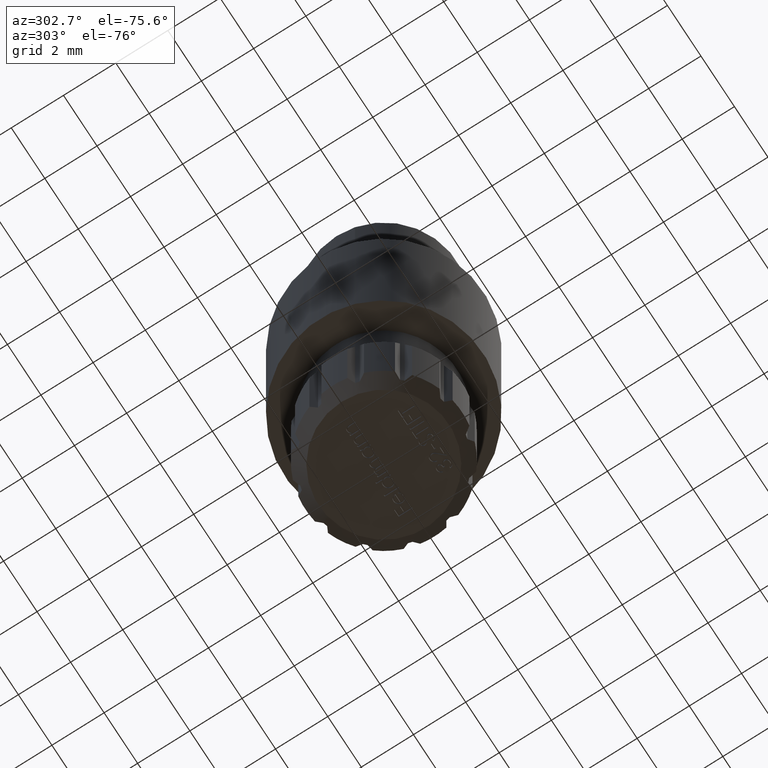
[diagram: clean part render]
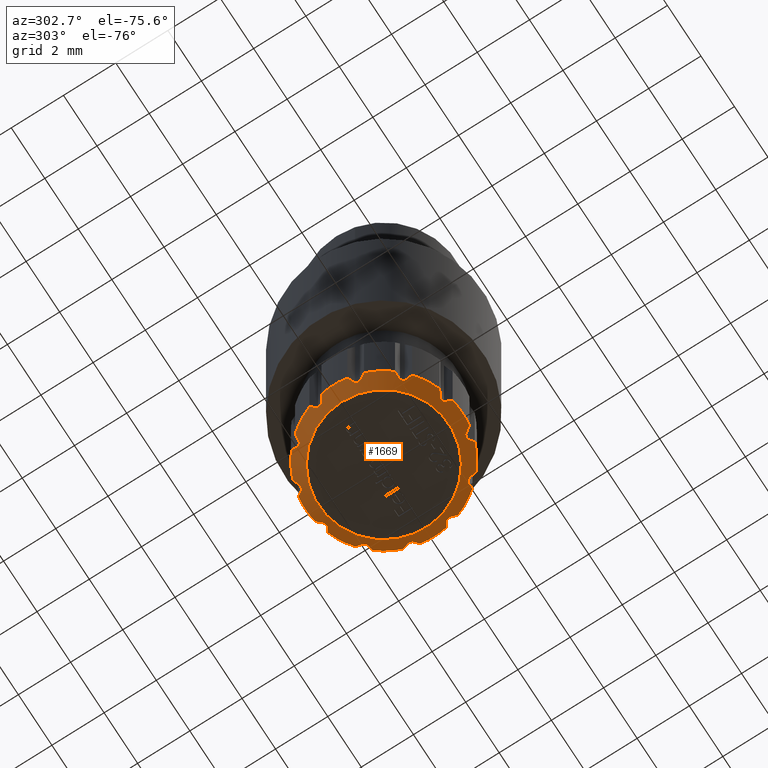
[diagram: same view with one face highlighted and labeled with its STEP entity id]
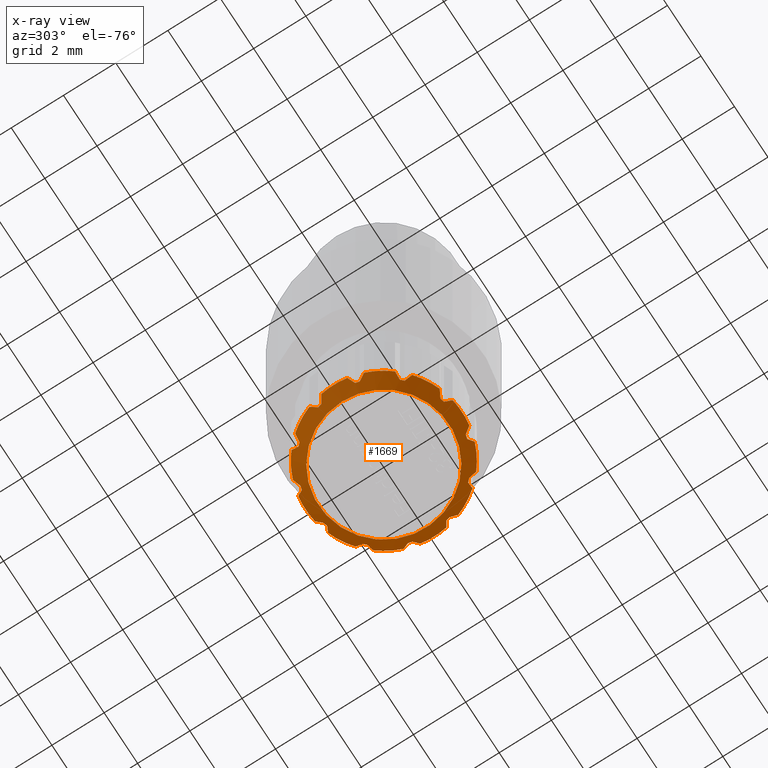
[diagram: x-ray of the same camera — body ghosted, the highlighted face saturated]
A machine part, auxiliary view. The second image highlights one B-rep face of the part: STEP entity #1669.
The next image is the same camera in x-ray: the body ghosted, the highlighted face saturated — about 0% of this face is hidden behind the body in this view.
In plain terms, the highlighted conical surface has half-angle 45 deg.
Its self-contained STEP definition (entity closure, byte-faithful):
#84 = CIRCLE ( 'NONE', #6076, 3.000000000000000000 ) ;
#102 = CARTESIAN_POINT ( 'NONE',  ( 0.4999999999999998890, 2.958039891549808953, 0.4999999999999998890 ) ) ;
#162 = CARTESIAN_POINT ( 'NONE',  ( 2.311737691489904378, 1.912032647667118335, 0.4999999999999998890 ) ) ;
#169 = CARTESIAN_POINT ( 'NONE',  ( -0.5000000000000000000, 2.958039891549808065, 0.4999999999999998890 ) ) ;
#176 = ORIENTED_EDGE ( 'NONE', *, *, #9007, .T. ) ;
#195 = CARTESIAN_POINT ( 'NONE',  ( -2.683627779027448756, 0.7988378706797785167, 0.2999999999999998224 ) ) ;
#208 = CARTESIAN_POINT ( 'NONE',  ( -2.811737691489909707, -1.046007243882658644, 0.4999999999999998890 ) ) ;
#251 = EDGE_CURVE ( 'NONE', #9379, #3245, #2273, .T. ) ;
#281 = DIRECTION ( 'NONE',  ( -1.000000000000000000, 0.000000000000000000, 0.000000000000000000 ) ) ;
#307 = CARTESIAN_POINT ( 'NONE',  ( -0.5994299824594278014, -2.802577053737541402, 0.3651688080806904102 ) ) ;
#314 = ORIENTED_EDGE ( 'NONE', *, *, #9612, .T. ) ;
#380 = CARTESIAN_POINT ( 'NONE',  ( 0.4999999999999998890, 2.958039891549808953, 0.4999999999999998890 ) ) ;
#385 = CARTESIAN_POINT ( 'NONE',  ( -0.8821669342688110982, 2.726817915829781835, 0.3651688080806902992 ) ) ;
#400 = DIRECTION ( 'NONE',  ( 0.000000000000000000, 0.000000000000000000, 1.000000000000000000 ) ) ;
#433 = B_SPLINE_CURVE_WITH_KNOTS ( 'NONE', 3,
 ( #4717, #3728, #1799, #7490 ),
 .UNSPECIFIED., .F., .F.,
 ( 4, 4 ),
 ( 2.742078407098144747E-07, 0.0003430640103736625076 ),
 .UNSPECIFIED. ) ;
#440 = EDGE_CURVE ( 'NONE', #1533, #8383, #3233, .T. ) ;
#476 = CARTESIAN_POINT ( 'NONE',  ( 0.6500000000000000222, -2.723508766279264304, 0.2999999999999998779 ) ) ;
#478 = CARTESIAN_POINT ( 'NONE',  ( 1.912032647667126106, 2.311737691489897273, 0.4999999999999998890 ) ) ;
#506 = DIRECTION ( 'NONE',  ( -0.000000000000000000, -0.000000000000000000, -1.000000000000000000 ) ) ;
#534 = ORIENTED_EDGE ( 'NONE', *, *, #10775, .T. ) ;
#568 = ORIENTED_EDGE ( 'NONE', *, *, #5762, .T. ) ;
#570 = ORIENTED_EDGE ( 'NONE', *, *, #2886, .F. ) ;
#573 = DIRECTION ( 'NONE',  ( -1.000000000000000000, 0.000000000000000000, 0.000000000000000000 ) ) ;
#621 = CARTESIAN_POINT ( 'NONE',  ( -1.924670895599491116, 2.033627779027482596, 0.2999999999999996003 ) ) ;
#653 = VERTEX_POINT ( 'NONE', #195 ) ;
#672 = AXIS2_PLACEMENT_3D ( 'NONE', #1098, #5718, #7698 ) ;
#694 = CARTESIAN_POINT ( 'NONE',  ( -2.958039891549813838, -0.4999999999999698574, 0.4999999999999998890 ) ) ;
#836 = CARTESIAN_POINT ( 'NONE',  ( -1.912032647667093910, 2.311737691489923918, 0.4999999999999998890 ) ) ;
#843 = CARTESIAN_POINT ( 'NONE',  ( 1.916200600912734808, -2.220020143417681613, 0.4319807832766577316 ) ) ;
#847 = ORIENTED_EDGE ( 'NONE', *, *, #4121, .T. ) ;
#895 = FACE_BOUND ( 'NONE', #7110, .T. ) ;
#898 = CARTESIAN_POINT ( 'NONE',  ( 2.311737691489891056, -1.912032647667133878, 0.4999999999999998890 ) ) ;
#917 = VERTEX_POINT ( 'NONE', #162 ) ;
#954 = CARTESIAN_POINT ( 'NONE',  ( -2.311737691489917257, -1.912032647667102125, 0.4999999999999998890 ) ) ;
#958 = CARTESIAN_POINT ( 'NONE',  ( -2.723508766279257198, 0.6500000000000284439, 0.2999999999999996003 ) ) ;
#980 = CARTESIAN_POINT ( 'NONE',  ( 0.000000000000000000, 0.000000000000000000, 0.2999999999999996003 ) ) ;
#1027 = CARTESIAN_POINT ( 'NONE',  ( -0.5994299824594279125, 2.802577053737540957, 0.3651688080806900771 ) ) ;
#1092 = VERTEX_POINT ( 'NONE', #380 ) ;
#1098 = CARTESIAN_POINT ( 'NONE',  ( 0.000000000000000000, 0.000000000000000000, 0.4999999999999998890 ) ) ;
#1119 = DIRECTION ( 'NONE',  ( -0.000000000000000000, -0.000000000000000000, -1.000000000000000000 ) ) ;
#1151 = ORIENTED_EDGE ( 'NONE', *, *, #4672, .F. ) ;
#1175 = DIRECTION ( 'NONE',  ( -1.000000000000000000, 0.000000000000000000, 0.000000000000000000 ) ) ;
#1177 = CIRCLE ( 'NONE', #2845, 2.799999999999999822 ) ;
#1200 = DIRECTION ( 'NONE',  ( -1.000000000000000000, 0.000000000000000000, 0.000000000000000000 ) ) ;
#1216 = CARTESIAN_POINT ( 'NONE',  ( 2.958039891549809841, 0.4999999999999893974, 0.4999999999999998890 ) ) ;
#1254 = CARTESIAN_POINT ( 'NONE',  ( -2.958039891549813838, -0.4999999999999698574, 0.4999999999999998890 ) ) ;
#1257 = EDGE_CURVE ( 'NONE', #3510, #3758, #433, .T. ) ;
#1329 = CARTESIAN_POINT ( 'NONE',  ( -0.6499999999999999112, 2.723508766279263860, 0.2999999999999996003 ) ) ;
#1334 = ORIENTED_EDGE ( 'NONE', *, *, #8988, .T. ) ;
#1341 = CARTESIAN_POINT ( 'NONE',  ( -2.683627779027465632, -0.7988378706797221174, 0.2999999999999996003 ) ) ;
#1356 = VERTEX_POINT ( 'NONE', #5866 ) ;
#1363 = CARTESIAN_POINT ( 'NONE',  ( 0.000000000000000000, 0.000000000000000000, 0.4999999999999998890 ) ) ;
#1390 = ORIENTED_EDGE ( 'NONE', *, *, #4383, .T. ) ;
#1396 = CIRCLE ( 'NONE', #1504, 3.000000000000000000 ) ;
#1433 = CARTESIAN_POINT ( 'NONE',  ( -2.683627779027448756, 0.7988378706797785167, 0.2999999999999998224 ) ) ;
#1459 = DIRECTION ( 'NONE',  ( -1.000000000000000000, 0.000000000000000000, 0.000000000000000000 ) ) ;
#1504 = AXIS2_PLACEMENT_3D ( 'NONE', #4694, #9381, #11457 ) ;
#1523 = CARTESIAN_POINT ( 'NONE',  ( -2.802577053737534740, 0.5994299824594572224, 0.3651688080806904102 ) ) ;
#1533 = VERTEX_POINT ( 'NONE', #6062 ) ;
#1560 = CARTESIAN_POINT ( 'NONE',  ( 1.912032647667110119, -2.311737691489910596, 0.4999999999999998890 ) ) ;
#1605 = CARTESIAN_POINT ( 'NONE',  ( -0.5494683274286109587, -2.880694141569248856, 0.4319807832766581202 ) ) ;
#1612 = VERTEX_POINT ( 'NONE', #3238 ) ;
#1619 = CIRCLE ( 'NONE', #11729, 3.000000000000000000 ) ;
#1634 = CARTESIAN_POINT ( 'NONE',  ( 0.7988378706797500950, 2.683627779027457194, 0.2999999999999997669 ) ) ;
#1640 = B_SPLINE_CURVE_WITH_KNOTS ( 'NONE', 3,
 ( #5899, #9731, #9632, #10616 ),
 .UNSPECIFIED., .F., .F.,
 ( 4, 4 ),
 ( 2.954317623281936935E-07, 0.0003430852342952688135 ),
 .UNSPECIFIED. ) ;
#1641 = EDGE_CURVE ( 'NONE', #5516, #1356, #7230, .T. ) ;
#1649 = ORIENTED_EDGE ( 'NONE', *, *, #10435, .T. ) ;
#1656 = EDGE_CURVE ( 'NONE', #3204, #3399, #8308, .T. ) ;
#1669 = ADVANCED_FACE ( 'NONE', ( #4568, #895 ), #12333, .T. ) ;
#1674 = AXIS2_PLACEMENT_3D ( 'NONE', #5221, #10049, #6172 ) ;
#1689 = CARTESIAN_POINT ( 'NONE',  ( -1.916200600912719043, 2.220020143417694936, 0.4319807832766572875 ) ) ;
#1783 = AXIS2_PLACEMENT_3D ( 'NONE', #980, #10387, #7575 ) ;
#1791 = VERTEX_POINT ( 'NONE', #3794 ) ;
#1799 = CARTESIAN_POINT ( 'NONE',  ( 2.769488470846277028, -0.9644935406565140479, 0.4319807832766579536 ) ) ;
#1806 = DIRECTION ( 'NONE',  ( 0.000000000000000000, 0.000000000000000000, 1.000000000000000000 ) ) ;
#1830 = EDGE_CURVE ( 'NONE', #9379, #3399, #1177, .T. ) ;
#1855 = ORIENTED_EDGE ( 'NONE', *, *, #9568, .T. ) ;
#1905 = B_SPLINE_CURVE_WITH_KNOTS ( 'NONE', 3,
 ( #11945, #9975, #2492, #8187 ),
 .UNSPECIFIED., .F., .F.,
 ( 4, 4 ),
 ( 2.742078407102277738E-07, 0.0003430640103736633749 ),
 .UNSPECIFIED. ) ;
#1910 = CARTESIAN_POINT ( 'NONE',  ( -0.7988378706797126805, 2.683627779027468296, 0.2999999999999998224 ) ) ;
#1929 = CARTESIAN_POINT ( 'NONE',  ( 0.000000000000000000, 0.000000000000000000, 0.2999999999999996003 ) ) ;
#1957 = DIRECTION ( 'NONE',  ( -1.000000000000000000, 0.000000000000000000, 0.000000000000000000 ) ) ;
#1986 = ORIENTED_EDGE ( 'NONE', *, *, #7661, .T. ) ;
#2005 = VERTEX_POINT ( 'NONE', #11991 ) ;
#2049 = CARTESIAN_POINT ( 'NONE',  ( 1.920410119468698218, 2.127387933370340267, 0.3651688080806899661 ) ) ;
#2176 = VERTEX_POINT ( 'NONE', #11278 ) ;
#2189 = AXIS2_PLACEMENT_3D ( 'NONE', #4869, #9567, #3884 ) ;
#2273 = B_SPLINE_CURVE_WITH_KNOTS ( 'NONE', 3,
 ( #5633, #3741, #2809, #10390 ),
 .UNSPECIFIED., .F., .F.,
 ( 4, 4 ),
 ( 2.437016887059421139E-07, 0.0003430335042216856923 ),
 .UNSPECIFIED. ) ;
#2288 = CARTESIAN_POINT ( 'NONE',  ( 2.311737691489904378, 1.912032647667118335, 0.4999999999999998890 ) ) ;
#2385 = CARTESIAN_POINT ( 'NONE',  ( -2.726817915829760075, 0.8821669342688776005, 0.3651688080806905212 ) ) ;
#2439 = CARTESIAN_POINT ( 'NONE',  ( -1.912032647667142315, -2.311737691489883950, 0.4999999999999998890 ) ) ;
#2492 = CARTESIAN_POINT ( 'NONE',  ( -0.9644935406565242619, -2.769488470846273476, 0.4319807832766577871 ) ) ;
#2505 = CARTESIAN_POINT ( 'NONE',  ( 2.811737691489902158, 1.046007243882678406, 0.4999999999999998890 ) ) ;
#2517 = CARTESIAN_POINT ( 'NONE',  ( -2.723508766279271409, -0.6499999999999714895, 0.2999999999999998779 ) ) ;
#2529 = AXIS2_PLACEMENT_3D ( 'NONE', #9352, #9398, #6513 ) ;
#2594 = CIRCLE ( 'NONE', #1674, 2.799999999999999822 ) ;
#2602 = VERTEX_POINT ( 'NONE', #1216 ) ;
#2642 = CARTESIAN_POINT ( 'NONE',  ( -2.723508766279271409, -0.6499999999999714895, 0.2999999999999998779 ) ) ;
#2660 = CARTESIAN_POINT ( 'NONE',  ( 2.723508766279261639, -0.6500000000000093481, 0.2999999999999996003 ) ) ;
#2663 = EDGE_CURVE ( 'NONE', #6788, #3204, #1619, .T. ) ;
#2664 = AXIS2_PLACEMENT_3D ( 'NONE', #8163, #5385, #8334 ) ;
#2669 = CARTESIAN_POINT ( 'NONE',  ( 2.127387933370333606, -1.920410119468705767, 0.3651688080806905767 ) ) ;
#2692 = EDGE_CURVE ( 'NONE', #2005, #917, #4807, .T. ) ;
#2717 = AXIS2_PLACEMENT_3D ( 'NONE', #4044, #4087, #281 ) ;
#2738 = ORIENTED_EDGE ( 'NONE', *, *, #12169, .T. ) ;
#2746 = CARTESIAN_POINT ( 'NONE',  ( 1.912032647667110119, -2.311737691489910596, 0.4999999999999998890 ) ) ;
#2751 = CARTESIAN_POINT ( 'NONE',  ( -1.912032647667093910, 2.311737691489923918, 0.4999999999999998890 ) ) ;
#2757 = CIRCLE ( 'NONE', #672, 3.000000000000000000 ) ;
#2809 = CARTESIAN_POINT ( 'NONE',  ( -2.220020143417687830, -1.916200600912727259, 0.4319807832766577316 ) ) ;
#2820 = DIRECTION ( 'NONE',  ( 0.000000000000000000, 0.000000000000000000, 1.000000000000000000 ) ) ;
#2845 = AXIS2_PLACEMENT_3D ( 'NONE', #2898, #2820, #4774 ) ;
#2855 = B_SPLINE_CURVE_WITH_KNOTS ( 'NONE', 3,
 ( #3526, #4497, #7361, #9269 ),
 .UNSPECIFIED., .F., .F.,
 ( 4, 4 ),
 ( 2.803256453692197039E-07, 0.0003430701281783232683 ),
 .UNSPECIFIED. ) ;
#2864 = VERTEX_POINT ( 'NONE', #2751 ) ;
#2869 = CIRCLE ( 'NONE', #4599, 3.000000000000000000 ) ;
#2886 = EDGE_CURVE ( 'NONE', #10343, #9799, #7050, .T. ) ;
#2892 = CARTESIAN_POINT ( 'NONE',  ( 2.958039891549809841, 0.4999999999999893974, 0.4999999999999998890 ) ) ;
#2895 = CIRCLE ( 'NONE', #2189, 2.799999999999999822 ) ;
#2898 = CARTESIAN_POINT ( 'NONE',  ( 0.000000000000000000, 0.000000000000000000, 0.2999999999999996003 ) ) ;
#2909 = DIRECTION ( 'NONE',  ( -1.000000000000000000, 0.000000000000000000, 0.000000000000000000 ) ) ;
#2923 = ORIENTED_EDGE ( 'NONE', *, *, #7743, .T. ) ;
#2946 = CIRCLE ( 'NONE', #4575, 2.799999999999999822 ) ;
#3017 = EDGE_CURVE ( 'NONE', #653, #6980, #2946, .T. ) ;
#3045 = CARTESIAN_POINT ( 'NONE',  ( 0.000000000000000000, 0.000000000000000000, 0.4999999999999998890 ) ) ;
#3061 = VERTEX_POINT ( 'NONE', #3906 ) ;
#3073 = CARTESIAN_POINT ( 'NONE',  ( 1.046007243882687288, 2.811737691489899049, 0.4999999999999998890 ) ) ;
#3102 = CARTESIAN_POINT ( 'NONE',  ( 0.9644935406564856262, -2.769488470846286798, 0.4319807832766576206 ) ) ;
#3143 = DIRECTION ( 'NONE',  ( -1.000000000000000000, 0.000000000000000000, 0.000000000000000000 ) ) ;
#3204 = VERTEX_POINT ( 'NONE', #12015 ) ;
#3233 = B_SPLINE_CURVE_WITH_KNOTS ( 'NONE', 3,
 ( #898, #8329, #2669, #3612 ),
 .UNSPECIFIED., .F., .F.,
 ( 4, 4 ),
 ( 2.491383796164675240E-07, 0.0003430389409125971759 ),
 .UNSPECIFIED. ) ;
#3238 = CARTESIAN_POINT ( 'NONE',  ( 0.5000000000000000000, -2.958039891549808065, 0.4999999999999998890 ) ) ;
#3245 = VERTEX_POINT ( 'NONE', #954 ) ;
#3259 = B_SPLINE_CURVE_WITH_KNOTS ( 'NONE', 3,
 ( #2642, #3584, #12054, #694 ),
 .UNSPECIFIED., .F., .F.,
 ( 4, 4 ),
 ( 2.889840042084965281E-07, 0.0003430787865371480450 ),
 .UNSPECIFIED. ) ;
#3264 = CARTESIAN_POINT ( 'NONE',  ( -2.769488470846269923, 0.9644935406565338099, 0.4319807832766576761 ) ) ;
#3271 = DIRECTION ( 'NONE',  ( -0.000000000000000000, -0.000000000000000000, -1.000000000000000000 ) ) ;
#3297 = CARTESIAN_POINT ( 'NONE',  ( -1.046007243882648874, 2.811737691489913260, 0.4999999999999998890 ) ) ;
#3305 = VERTEX_POINT ( 'NONE', #8425 ) ;
#3329 = EDGE_CURVE ( 'NONE', #3851, #3370, #9579, .T. ) ;
#3370 = VERTEX_POINT ( 'NONE', #5684 ) ;
#3393 = ORIENTED_EDGE ( 'NONE', *, *, #1257, .T. ) ;
#3399 = VERTEX_POINT ( 'NONE', #7586 ) ;
#3452 = ORIENTED_EDGE ( 'NONE', *, *, #9783, .F. ) ;
#3468 = B_SPLINE_CURVE_WITH_KNOTS ( 'NONE', 3,
 ( #4524, #4803, #8506, #2892 ),
 .UNSPECIFIED., .F., .F.,
 ( 4, 4 ),
 ( 2.889840042084648702E-07, 0.0003430787865371480992 ),
 .UNSPECIFIED. ) ;
#3503 = CARTESIAN_POINT ( 'NONE',  ( 2.811737691489895052, -1.046007243882697058, 0.4999999999999998890 ) ) ;
#3510 = VERTEX_POINT ( 'NONE', #7918 ) ;
#3526 = CARTESIAN_POINT ( 'NONE',  ( 2.811737691489902158, 1.046007243882678406, 0.4999999999999998890 ) ) ;
#3575 = CARTESIAN_POINT ( 'NONE',  ( 0.8821669342688489568, 2.726817915829768957, 0.3651688080806900771 ) ) ;
#3579 = CARTESIAN_POINT ( 'NONE',  ( 0.7988378706797313322, -2.683627779027462523, 0.2999999999999996003 ) ) ;
#3584 = CARTESIAN_POINT ( 'NONE',  ( -2.802577053737547619, -0.5994299824593982695, 0.3651688080806903547 ) ) ;
#3594 = ORIENTED_EDGE ( 'NONE', *, *, #6628, .T. ) ;
#3612 = CARTESIAN_POINT ( 'NONE',  ( 2.033627779027448845, -1.924670895599526865, 0.2999999999999996003 ) ) ;
#3728 = CARTESIAN_POINT ( 'NONE',  ( 2.726817915829766736, -0.8821669342688581716, 0.3651688080806906878 ) ) ;
#3729 = CARTESIAN_POINT ( 'NONE',  ( 1.924670895599519538, 2.033627779027455507, 0.2999999999999996003 ) ) ;
#3741 = CARTESIAN_POINT ( 'NONE',  ( -2.127387933370360251, -1.920410119468675791, 0.3651688080806906878 ) ) ;
#3758 = VERTEX_POINT ( 'NONE', #3503 ) ;
#3775 = VERTEX_POINT ( 'NONE', #3579 ) ;
#3794 = CARTESIAN_POINT ( 'NONE',  ( 0.6499999999999999112, 2.723508766279263860, 0.2999999999999996003 ) ) ;
#3799 = CARTESIAN_POINT ( 'NONE',  ( 0.000000000000000000, 0.000000000000000000, 0.4999999999999998890 ) ) ;
#3802 = CIRCLE ( 'NONE', #7821, 2.799999999999999822 ) ;
#3823 = EDGE_CURVE ( 'NONE', #2005, #11933, #3802, .T. ) ;
#3851 = VERTEX_POINT ( 'NONE', #1329 ) ;
#3884 = DIRECTION ( 'NONE',  ( 1.000000000000000000, 0.000000000000000000, 0.000000000000000000 ) ) ;
#3906 = CARTESIAN_POINT ( 'NONE',  ( -2.958039891549802736, 0.5000000000000307532, 0.4999999999999998890 ) ) ;
#3944 = ORIENTED_EDGE ( 'NONE', *, *, #8431, .F. ) ;
#3951 = DIRECTION ( 'NONE',  ( -0.000000000000000000, -0.000000000000000000, -1.000000000000000000 ) ) ;
#3965 = VERTEX_POINT ( 'NONE', #1254 ) ;
#3973 = CARTESIAN_POINT ( 'NONE',  ( -2.683627779027465632, -0.7988378706797221174, 0.2999999999999996003 ) ) ;
#3976 = EDGE_CURVE ( 'NONE', #3758, #1533, #84, .T. ) ;
#3988 = CARTESIAN_POINT ( 'NONE',  ( 0.5494683274286109587, 2.880694141569248856, 0.4319807832766581202 ) ) ;
#4044 = CARTESIAN_POINT ( 'NONE',  ( 0.000000000000000000, 0.000000000000000000, -1.169278378903498267E-16 ) ) ;
#4067 = CARTESIAN_POINT ( 'NONE',  ( 0.000000000000000000, 0.000000000000000000, 0.2999999999999996003 ) ) ;
#4082 = EDGE_CURVE ( 'NONE', #2176, #6788, #1905, .T. ) ;
#4087 = DIRECTION ( 'NONE',  ( -0.000000000000000000, -0.000000000000000000, -1.000000000000000000 ) ) ;
#4112 = CARTESIAN_POINT ( 'NONE',  ( -2.311737691489876845, 1.912032647667150087, 0.4999999999999998890 ) ) ;
#4121 = EDGE_CURVE ( 'NONE', #9194, #6289, #8549, .T. ) ;
#4209 = EDGE_CURVE ( 'NONE', #10727, #6572, #2855, .T. ) ;
#4248 = CIRCLE ( 'NONE', #9287, 2.799999999999999822 ) ;
#4278 = VERTEX_POINT ( 'NONE', #1910 ) ;
#4279 = DIRECTION ( 'NONE',  ( -1.000000000000000000, 0.000000000000000000, 0.000000000000000000 ) ) ;
#4289 = VERTEX_POINT ( 'NONE', #5609 ) ;
#4383 = EDGE_CURVE ( 'NONE', #9250, #3775, #7828, .T. ) ;
#4389 = CARTESIAN_POINT ( 'NONE',  ( -1.046007243882648874, 2.811737691489913260, 0.4999999999999998890 ) ) ;
#4414 = EDGE_CURVE ( 'NONE', #653, #5516, #11828, .T. ) ;
#4497 = CARTESIAN_POINT ( 'NONE',  ( 2.769488470846283690, 0.9644935406564953961, 0.4319807832766576761 ) ) ;
#4524 = CARTESIAN_POINT ( 'NONE',  ( 2.723508766279266524, 0.6499999999999904743, 0.2999999999999997113 ) ) ;
#4568 = FACE_OUTER_BOUND ( 'NONE', #5696, .T. ) ;
#4575 = AXIS2_PLACEMENT_3D ( 'NONE', #12298, #6570, #12343 ) ;
#4599 = AXIS2_PLACEMENT_3D ( 'NONE', #5052, #506, #1459 ) ;
#4626 = B_SPLINE_CURVE_WITH_KNOTS ( 'NONE', 3,
 ( #476, #9011, #11682, #9876 ),
 .UNSPECIFIED., .F., .F.,
 ( 4, 4 ),
 ( 2.889840042084965281E-07, 0.0003430787865371479365 ),
 .UNSPECIFIED. ) ;
#4640 = EDGE_CURVE ( 'NONE', #3305, #3775, #8270, .T. ) ;
#4667 = ORIENTED_EDGE ( 'NONE', *, *, #3329, .T. ) ;
#4672 = EDGE_CURVE ( 'NONE', #2176, #8784, #4248, .T. ) ;
#4694 = CARTESIAN_POINT ( 'NONE',  ( 0.000000000000000000, 0.000000000000000000, 0.4999999999999998890 ) ) ;
#4717 = CARTESIAN_POINT ( 'NONE',  ( 2.683627779027454974, -0.7988378706797596429, 0.3000000000000002665 ) ) ;
#4729 = CARTESIAN_POINT ( 'NONE',  ( 1.912032647667126106, 2.311737691489897273, 0.4999999999999998890 ) ) ;
#4768 = ORIENTED_EDGE ( 'NONE', *, *, #7750, .T. ) ;
#4774 = DIRECTION ( 'NONE',  ( 1.000000000000000000, 0.000000000000000000, 0.000000000000000000 ) ) ;
#4786 = ORIENTED_EDGE ( 'NONE', *, *, #440, .T. ) ;
#4803 = CARTESIAN_POINT ( 'NONE',  ( 2.802577053737543622, 0.5994299824594178094, 0.3651688080806900771 ) ) ;
#4807 = B_SPLINE_CURVE_WITH_KNOTS ( 'NONE', 3,
 ( #8618, #9888, #10866, #2288 ),
 .UNSPECIFIED., .F., .F.,
 ( 4, 4 ),
 ( 2.437016887063888179E-07, 0.0003430335042216862886 ),
 .UNSPECIFIED. ) ;
#4811 = ORIENTED_EDGE ( 'NONE', *, *, #8752, .F. ) ;
#4825 = CARTESIAN_POINT ( 'NONE',  ( 2.683627779027459859, 0.7988378706797408801, 0.2999999999999996003 ) ) ;
#4869 = CARTESIAN_POINT ( 'NONE',  ( 0.000000000000000000, 0.000000000000000000, 0.2999999999999996003 ) ) ;
#4872 = ORIENTED_EDGE ( 'NONE', *, *, #4209, .T. ) ;
#4889 = AXIS2_PLACEMENT_3D ( 'NONE', #9522, #1119, #6685 ) ;
#4980 = CARTESIAN_POINT ( 'NONE',  ( 0.7988378706797313322, -2.683627779027462523, 0.2999999999999996003 ) ) ;
#5044 = EDGE_CURVE ( 'NONE', #10343, #3965, #3259, .T. ) ;
#5050 = DIRECTION ( 'NONE',  ( 0.000000000000000000, 0.000000000000000000, 1.000000000000000000 ) ) ;
#5052 = CARTESIAN_POINT ( 'NONE',  ( 0.000000000000000000, 0.000000000000000000, 0.4999999999999998890 ) ) ;
#5136 = CARTESIAN_POINT ( 'NONE',  ( -0.7988378706797126805, 2.683627779027468296, 0.2999999999999998224 ) ) ;
#5176 = AXIS2_PLACEMENT_3D ( 'NONE', #6573, #12259, #2909 ) ;
#5214 = VERTEX_POINT ( 'NONE', #9861 ) ;
#5221 = CARTESIAN_POINT ( 'NONE',  ( 0.000000000000000000, 0.000000000000000000, 0.2999999999999996003 ) ) ;
#5236 = CARTESIAN_POINT ( 'NONE',  ( -1.920410119468713095, -2.127387933370326945, 0.3651688080806904657 ) ) ;
#5246 = B_SPLINE_CURVE_WITH_KNOTS ( 'NONE', 3,
 ( #102, #3988, #5895, #7844 ),
 .UNSPECIFIED., .F., .F.,
 ( 4, 4 ),
 ( 2.954317623281304308E-07, 0.0003430852342952685425 ),
 .UNSPECIFIED. ) ;
#5274 = CARTESIAN_POINT ( 'NONE',  ( -2.880694141569243527, 0.5494683274286409347, 0.4319807832766575650 ) ) ;
#5334 = CARTESIAN_POINT ( 'NONE',  ( 1.046007243882687288, 2.811737691489899049, 0.4999999999999998890 ) ) ;
#5385 = DIRECTION ( 'NONE',  ( -0.000000000000000000, -0.000000000000000000, -1.000000000000000000 ) ) ;
#5399 = VERTEX_POINT ( 'NONE', #12090 ) ;
#5516 = VERTEX_POINT ( 'NONE', #5709 ) ;
#5568 = CIRCLE ( 'NONE', #6838, 2.799999999999999822 ) ;
#5609 = CARTESIAN_POINT ( 'NONE',  ( 2.723508766279266524, 0.6499999999999904743, 0.2999999999999997113 ) ) ;
#5633 = CARTESIAN_POINT ( 'NONE',  ( -2.033627779027476379, -1.924670895599498444, 0.2999999999999999334 ) ) ;
#5636 = DIRECTION ( 'NONE',  ( 0.000000000000000000, 0.000000000000000000, 1.000000000000000000 ) ) ;
#5638 = CARTESIAN_POINT ( 'NONE',  ( 1.924670895599519538, 2.033627779027455507, 0.2999999999999996003 ) ) ;
#5684 = CARTESIAN_POINT ( 'NONE',  ( -0.5000000000000000000, 2.958039891549808065, 0.4999999999999998890 ) ) ;
#5696 = EDGE_LOOP ( 'NONE', ( #9418, #7309, #534, #9919, #176, #7584, #8521, #314, #4872, #4811, #1649, #4768, #2738, #6061, #3393, #7777, #4786, #3452, #847, #2923, #1390, #8211, #11099, #11624, #7178, #1151, #9091, #6936, #12095, #5766, #10107, #1334, #6141, #570, #11363, #3594, #568, #12118, #11876, #6051, #12324, #10852, #1855, #12187, #10914, #7932, #4667, #1986 ) ) ;
#5709 = CARTESIAN_POINT ( 'NONE',  ( -2.811737691489887947, 1.046007243882717042, 0.4999999999999998890 ) ) ;
#5718 = DIRECTION ( 'NONE',  ( -0.000000000000000000, -0.000000000000000000, -1.000000000000000000 ) ) ;
#5762 = EDGE_CURVE ( 'NONE', #3061, #6980, #12004, .T. ) ;
#5766 = ORIENTED_EDGE ( 'NONE', *, *, #1830, .F. ) ;
#5849 = CIRCLE ( 'NONE', #10452, 3.000000000000000000 ) ;
#5866 = CARTESIAN_POINT ( 'NONE',  ( -2.311737691489876845, 1.912032647667150087, 0.4999999999999998890 ) ) ;
#5888 = AXIS2_PLACEMENT_3D ( 'NONE', #1363, #3271, #4279 ) ;
#5895 = CARTESIAN_POINT ( 'NONE',  ( 0.5994299824594278014, 2.802577053737541402, 0.3651688080806904102 ) ) ;
#5899 = CARTESIAN_POINT ( 'NONE',  ( 2.958039891549807177, -0.5000000000000102141, 0.4999999999999998890 ) ) ;
#5940 = CARTESIAN_POINT ( 'NONE',  ( -2.220020143417647418, 1.916200600912773444, 0.4319807832766575650 ) ) ;
#6051 = ORIENTED_EDGE ( 'NONE', *, *, #1641, .T. ) ;
#6061 = ORIENTED_EDGE ( 'NONE', *, *, #8844, .F. ) ;
#6062 = CARTESIAN_POINT ( 'NONE',  ( 2.311737691489891056, -1.912032647667133878, 0.4999999999999998890 ) ) ;
#6076 = AXIS2_PLACEMENT_3D ( 'NONE', #6152, #6184, #573 ) ;
#6126 = CARTESIAN_POINT ( 'NONE',  ( 0.000000000000000000, 0.000000000000000000, 0.2999999999999996003 ) ) ;
#6141 = ORIENTED_EDGE ( 'NONE', *, *, #9721, .T. ) ;
#6152 = CARTESIAN_POINT ( 'NONE',  ( 0.000000000000000000, 0.000000000000000000, 0.4999999999999998890 ) ) ;
#6172 = DIRECTION ( 'NONE',  ( 1.000000000000000000, 0.000000000000000000, 0.000000000000000000 ) ) ;
#6180 = CARTESIAN_POINT ( 'NONE',  ( -1.924670895599533749, -2.033627779027442628, 0.2999999999999996003 ) ) ;
#6184 = DIRECTION ( 'NONE',  ( -0.000000000000000000, -0.000000000000000000, -1.000000000000000000 ) ) ;
#6206 = AXIS2_PLACEMENT_3D ( 'NONE', #6759, #3951, #3143 ) ;
#6209 = B_SPLINE_CURVE_WITH_KNOTS ( 'NONE', 3,
 ( #1634, #3575, #6244, #5334 ),
 .UNSPECIFIED., .F., .F.,
 ( 4, 4 ),
 ( 2.742078407099875341E-07, 0.0003430640103736634292 ),
 .UNSPECIFIED. ) ;
#6244 = CARTESIAN_POINT ( 'NONE',  ( 0.9644935406565046110, 2.769488470846280137, 0.4319807832766576206 ) ) ;
#6289 = VERTEX_POINT ( 'NONE', #1560 ) ;
#6508 = VERTEX_POINT ( 'NONE', #8321 ) ;
#6513 = DIRECTION ( 'NONE',  ( 1.000000000000000000, 0.000000000000000000, 0.000000000000000000 ) ) ;
#6518 = B_SPLINE_CURVE_WITH_KNOTS ( 'NONE', 3,
 ( #3297, #11923, #385, #5136 ),
 .UNSPECIFIED., .F., .F.,
 ( 4, 4 ),
 ( 2.803256453694392972E-07, 0.0003430701281783233767 ),
 .UNSPECIFIED. ) ;
#6544 = DIRECTION ( 'NONE',  ( 1.000000000000000000, 0.000000000000000000, 0.000000000000000000 ) ) ;
#6554 = VERTEX_POINT ( 'NONE', #10451 ) ;
#6565 = CIRCLE ( 'NONE', #7212, 2.799999999999999822 ) ;
#6570 = DIRECTION ( 'NONE',  ( 0.000000000000000000, 0.000000000000000000, 1.000000000000000000 ) ) ;
#6572 = VERTEX_POINT ( 'NONE', #4825 ) ;
#6573 = CARTESIAN_POINT ( 'NONE',  ( 0.000000000000000000, 0.000000000000000000, 0.4999999999999998890 ) ) ;
#6628 = EDGE_CURVE ( 'NONE', #3965, #3061, #7934, .T. ) ;
#6685 = DIRECTION ( 'NONE',  ( -1.000000000000000000, 0.000000000000000000, 0.000000000000000000 ) ) ;
#6716 = VERTEX_POINT ( 'NONE', #478 ) ;
#6759 = CARTESIAN_POINT ( 'NONE',  ( 0.000000000000000000, 0.000000000000000000, 0.4999999999999998890 ) ) ;
#6788 = VERTEX_POINT ( 'NONE', #12018 ) ;
#6838 = AXIS2_PLACEMENT_3D ( 'NONE', #4067, #9582, #8812 ) ;
#6840 = CIRCLE ( 'NONE', #11604, 3.000000000000000000 ) ;
#6907 = DIRECTION ( 'NONE',  ( 1.000000000000000000, 0.000000000000000000, 0.000000000000000000 ) ) ;
#6936 = ORIENTED_EDGE ( 'NONE', *, *, #2663, .T. ) ;
#6960 = CARTESIAN_POINT ( 'NONE',  ( -2.811737691489887947, 1.046007243882717042, 0.4999999999999998890 ) ) ;
#6962 = CARTESIAN_POINT ( 'NONE',  ( -2.033627779027435523, 1.924670895599541076, 0.2999999999999996003 ) ) ;
#6980 = VERTEX_POINT ( 'NONE', #958 ) ;
#7028 = EDGE_CURVE ( 'NONE', #6554, #1791, #5568, .T. ) ;
#7034 = AXIS2_PLACEMENT_3D ( 'NONE', #9524, #9557, #10524 ) ;
#7050 = CIRCLE ( 'NONE', #2529, 2.799999999999999822 ) ;
#7110 = EDGE_LOOP ( 'NONE', ( #3944 ) ) ;
#7178 = ORIENTED_EDGE ( 'NONE', *, *, #10365, .T. ) ;
#7201 = EDGE_CURVE ( 'NONE', #1092, #1791, #5246, .T. ) ;
#7212 = AXIS2_PLACEMENT_3D ( 'NONE', #6126, #5050, #6907 ) ;
#7230 = CIRCLE ( 'NONE', #5888, 3.000000000000000000 ) ;
#7256 = VERTEX_POINT ( 'NONE', #3073 ) ;
#7274 = VERTEX_POINT ( 'NONE', #11497 ) ;
#7302 = CARTESIAN_POINT ( 'NONE',  ( -1.924670895599491116, 2.033627779027482596, 0.2999999999999996003 ) ) ;
#7309 = ORIENTED_EDGE ( 'NONE', *, *, #7028, .F. ) ;
#7348 = CARTESIAN_POINT ( 'NONE',  ( -1.920410119468668242, 2.127387933370367357, 0.3651688080806900216 ) ) ;
#7361 = CARTESIAN_POINT ( 'NONE',  ( 2.726817915829772065, 0.8821669342688396309, 0.3651688080806902437 ) ) ;
#7490 = CARTESIAN_POINT ( 'NONE',  ( 2.811737691489895052, -1.046007243882697058, 0.4999999999999998890 ) ) ;
#7560 = VERTEX_POINT ( 'NONE', #2660 ) ;
#7575 = DIRECTION ( 'NONE',  ( 1.000000000000000000, 0.000000000000000000, 0.000000000000000000 ) ) ;
#7584 = ORIENTED_EDGE ( 'NONE', *, *, #3823, .F. ) ;
#7586 = CARTESIAN_POINT ( 'NONE',  ( -1.924670895599533749, -2.033627779027442628, 0.2999999999999996003 ) ) ;
#7661 = EDGE_CURVE ( 'NONE', #3370, #1092, #12116, .T. ) ;
#7687 = CARTESIAN_POINT ( 'NONE',  ( 0.000000000000000000, 0.000000000000000000, 0.4999999999999998890 ) ) ;
#7698 = DIRECTION ( 'NONE',  ( -1.000000000000000000, 0.000000000000000000, 0.000000000000000000 ) ) ;
#7730 = DIRECTION ( 'NONE',  ( -0.000000000000000000, -0.000000000000000000, -1.000000000000000000 ) ) ;
#7743 = EDGE_CURVE ( 'NONE', #6289, #9250, #5849, .T. ) ;
#7750 = EDGE_CURVE ( 'NONE', #2602, #11024, #11793, .T. ) ;
#7777 = ORIENTED_EDGE ( 'NONE', *, *, #3976, .T. ) ;
#7801 = CARTESIAN_POINT ( 'NONE',  ( 1.046007243882668414, -2.811737691489906155, 0.4999999999999998890 ) ) ;
#7821 = AXIS2_PLACEMENT_3D ( 'NONE', #1929, #1806, #11289 ) ;
#7828 = B_SPLINE_CURVE_WITH_KNOTS ( 'NONE', 3,
 ( #9588, #3102, #10686, #4980 ),
 .UNSPECIFIED., .F., .F.,
 ( 4, 4 ),
 ( 2.803256453694392972E-07, 0.0003430701281783235935 ),
 .UNSPECIFIED. ) ;
#7844 = CARTESIAN_POINT ( 'NONE',  ( 0.6499999999999999112, 2.723508766279263860, 0.2999999999999996003 ) ) ;
#7912 = EDGE_CURVE ( 'NONE', #3305, #1612, #4626, .T. ) ;
#7918 = CARTESIAN_POINT ( 'NONE',  ( 2.683627779027454974, -0.7988378706797596429, 0.3000000000000002665 ) ) ;
#7924 = CIRCLE ( 'NONE', #2717, 2.500000000000000444 ) ;
#7932 = ORIENTED_EDGE ( 'NONE', *, *, #11697, .F. ) ;
#7934 = CIRCLE ( 'NONE', #4889, 3.000000000000000000 ) ;
#7964 = EDGE_CURVE ( 'NONE', #9848, #4278, #6518, .T. ) ;
#7974 = CARTESIAN_POINT ( 'NONE',  ( -2.127387933370319839, 1.920410119468720200, 0.3651688080806900771 ) ) ;
#7987 = CARTESIAN_POINT ( 'NONE',  ( 1.924670895599505327, -2.033627779027469273, 0.2999999999999997669 ) ) ;
#8011 = AXIS2_PLACEMENT_3D ( 'NONE', #8340, #5636, #10218 ) ;
#8062 = EDGE_CURVE ( 'NONE', #2864, #9848, #10905, .T. ) ;
#8090 = CARTESIAN_POINT ( 'NONE',  ( -2.958039891549802736, 0.5000000000000307532, 0.4999999999999998890 ) ) ;
#8163 = CARTESIAN_POINT ( 'NONE',  ( 0.000000000000000000, 0.000000000000000000, 0.4999999999999998890 ) ) ;
#8187 = CARTESIAN_POINT ( 'NONE',  ( -1.046007243882707716, -2.811737691489891500, 0.4999999999999998890 ) ) ;
#8211 = ORIENTED_EDGE ( 'NONE', *, *, #4640, .F. ) ;
#8270 = CIRCLE ( 'NONE', #8011, 2.799999999999999822 ) ;
#8308 = B_SPLINE_CURVE_WITH_KNOTS ( 'NONE', 3,
 ( #2439, #10946, #5236, #6180 ),
 .UNSPECIFIED., .F., .F.,
 ( 4, 4 ),
 ( 2.491383796159258994E-07, 0.0003430389409125962543 ),
 .UNSPECIFIED. ) ;
#8321 = CARTESIAN_POINT ( 'NONE',  ( -2.811737691489909707, -1.046007243882658644, 0.4999999999999998890 ) ) ;
#8329 = CARTESIAN_POINT ( 'NONE',  ( 2.220020143417661629, -1.916200600912758123, 0.4319807832766582312 ) ) ;
#8334 = DIRECTION ( 'NONE',  ( -1.000000000000000000, 0.000000000000000000, 0.000000000000000000 ) ) ;
#8340 = CARTESIAN_POINT ( 'NONE',  ( 0.000000000000000000, 0.000000000000000000, 0.2999999999999996003 ) ) ;
#8383 = VERTEX_POINT ( 'NONE', #11603 ) ;
#8425 = CARTESIAN_POINT ( 'NONE',  ( 0.6500000000000000222, -2.723508766279264304, 0.2999999999999998779 ) ) ;
#8431 = EDGE_CURVE ( 'NONE', #7274, #7274, #7924, .T. ) ;
#8506 = CARTESIAN_POINT ( 'NONE',  ( 2.880694141569251077, 0.5494683274286008556, 0.4319807832766575650 ) ) ;
#8521 = ORIENTED_EDGE ( 'NONE', *, *, #2692, .T. ) ;
#8549 = B_SPLINE_CURVE_WITH_KNOTS ( 'NONE', 3,
 ( #12023, #10321, #843, #2746 ),
 .UNSPECIFIED., .F., .F.,
 ( 4, 4 ),
 ( 2.437016887063256081E-07, 0.0003430335042216862344 ),
 .UNSPECIFIED. ) ;
#8601 = B_SPLINE_CURVE_WITH_KNOTS ( 'NONE', 3,
 ( #7302, #7348, #1689, #836 ),
 .UNSPECIFIED., .F., .F.,
 ( 4, 4 ),
 ( 2.437016887059737188E-07, 0.0003430335042216859634 ),
 .UNSPECIFIED. ) ;
#8618 = CARTESIAN_POINT ( 'NONE',  ( 2.033627779027463056, 1.924670895599512654, 0.2999999999999999334 ) ) ;
#8749 = CARTESIAN_POINT ( 'NONE',  ( -2.726817915829778727, -0.8821669342688205351, 0.3651688080806901882 ) ) ;
#8752 = EDGE_CURVE ( 'NONE', #4289, #6572, #2594, .T. ) ;
#8784 = VERTEX_POINT ( 'NONE', #11093 ) ;
#8812 = DIRECTION ( 'NONE',  ( 1.000000000000000000, 0.000000000000000000, 0.000000000000000000 ) ) ;
#8844 = EDGE_CURVE ( 'NONE', #3510, #7560, #11346, .T. ) ;
#8955 = EDGE_CURVE ( 'NONE', #9225, #5214, #2895, .T. ) ;
#8988 = EDGE_CURVE ( 'NONE', #3245, #6508, #2757, .T. ) ;
#9007 = EDGE_CURVE ( 'NONE', #6716, #11933, #11314, .T. ) ;
#9011 = CARTESIAN_POINT ( 'NONE',  ( 0.5994299824594276904, -2.802577053737540957, 0.3651688080806902992 ) ) ;
#9050 = CARTESIAN_POINT ( 'NONE',  ( -2.723508766279257198, 0.6500000000000284439, 0.2999999999999996003 ) ) ;
#9091 = ORIENTED_EDGE ( 'NONE', *, *, #4082, .T. ) ;
#9194 = VERTEX_POINT ( 'NONE', #7987 ) ;
#9225 = VERTEX_POINT ( 'NONE', #621 ) ;
#9250 = VERTEX_POINT ( 'NONE', #7801 ) ;
#9269 = CARTESIAN_POINT ( 'NONE',  ( 2.683627779027459859, 0.7988378706797408801, 0.2999999999999996003 ) ) ;
#9287 = AXIS2_PLACEMENT_3D ( 'NONE', #12282, #10352, #6544 ) ;
#9352 = CARTESIAN_POINT ( 'NONE',  ( 0.000000000000000000, 0.000000000000000000, 0.2999999999999996003 ) ) ;
#9379 = VERTEX_POINT ( 'NONE', #10851 ) ;
#9381 = DIRECTION ( 'NONE',  ( -0.000000000000000000, -0.000000000000000000, -1.000000000000000000 ) ) ;
#9398 = DIRECTION ( 'NONE',  ( 0.000000000000000000, 0.000000000000000000, 1.000000000000000000 ) ) ;
#9416 = EDGE_CURVE ( 'NONE', #1356, #5214, #11638, .T. ) ;
#9418 = ORIENTED_EDGE ( 'NONE', *, *, #7201, .T. ) ;
#9475 = CARTESIAN_POINT ( 'NONE',  ( -0.5494683274286112917, 2.880694141569248856, 0.4319807832766576761 ) ) ;
#9522 = CARTESIAN_POINT ( 'NONE',  ( 0.000000000000000000, 0.000000000000000000, 0.4999999999999998890 ) ) ;
#9524 = CARTESIAN_POINT ( 'NONE',  ( 0.000000000000000000, 0.000000000000000000, 0.2999999999999996003 ) ) ;
#9557 = DIRECTION ( 'NONE',  ( 0.000000000000000000, 0.000000000000000000, 1.000000000000000000 ) ) ;
#9567 = DIRECTION ( 'NONE',  ( 0.000000000000000000, 0.000000000000000000, 1.000000000000000000 ) ) ;
#9568 = EDGE_CURVE ( 'NONE', #9225, #2864, #8601, .T. ) ;
#9579 = B_SPLINE_CURVE_WITH_KNOTS ( 'NONE', 3,
 ( #11390, #1027, #9475, #169 ),
 .UNSPECIFIED., .F., .F.,
 ( 4, 4 ),
 ( 2.889840042080258425E-07, 0.0003430787865371479365 ),
 .UNSPECIFIED. ) ;
#9582 = DIRECTION ( 'NONE',  ( 0.000000000000000000, 0.000000000000000000, 1.000000000000000000 ) ) ;
#9588 = CARTESIAN_POINT ( 'NONE',  ( 1.046007243882668414, -2.811737691489906155, 0.4999999999999998890 ) ) ;
#9612 = EDGE_CURVE ( 'NONE', #917, #10727, #1396, .T. ) ;
#9632 = CARTESIAN_POINT ( 'NONE',  ( 2.802577053737539181, -0.5994299824594375714, 0.3651688080806904657 ) ) ;
#9653 = CARTESIAN_POINT ( 'NONE',  ( -2.769488470846289907, -0.9644935406564758562, 0.4319807832766579536 ) ) ;
#9657 = CIRCLE ( 'NONE', #7034, 2.799999999999999822 ) ;
#9721 = EDGE_CURVE ( 'NONE', #6508, #9799, #11176, .T. ) ;
#9731 = CARTESIAN_POINT ( 'NONE',  ( 2.880694141569247524, -0.5494683274286209507, 0.4319807832766580646 ) ) ;
#9783 = EDGE_CURVE ( 'NONE', #9194, #8383, #6565, .T. ) ;
#9799 = VERTEX_POINT ( 'NONE', #1341 ) ;
#9848 = VERTEX_POINT ( 'NONE', #4389 ) ;
#9861 = CARTESIAN_POINT ( 'NONE',  ( -2.033627779027435523, 1.924670895599541076, 0.2999999999999996003 ) ) ;
#9876 = CARTESIAN_POINT ( 'NONE',  ( 0.5000000000000000000, -2.958039891549808065, 0.4999999999999998890 ) ) ;
#9888 = CARTESIAN_POINT ( 'NONE',  ( 2.127387933370347373, 1.920410119468690668, 0.3651688080806906322 ) ) ;
#9919 = ORIENTED_EDGE ( 'NONE', *, *, #11267, .T. ) ;
#9961 = CARTESIAN_POINT ( 'NONE',  ( -0.4999999999999998890, -2.958039891549808953, 0.4999999999999998890 ) ) ;
#9975 = CARTESIAN_POINT ( 'NONE',  ( -0.8821669342688681636, -2.726817915829763628, 0.3651688080806905767 ) ) ;
#10016 = DIRECTION ( 'NONE',  ( 1.000000000000000000, 0.000000000000000000, 0.000000000000000000 ) ) ;
#10049 = DIRECTION ( 'NONE',  ( 0.000000000000000000, 0.000000000000000000, 1.000000000000000000 ) ) ;
#10107 = ORIENTED_EDGE ( 'NONE', *, *, #251, .T. ) ;
#10216 = B_SPLINE_CURVE_WITH_KNOTS ( 'NONE', 3,
 ( #9961, #1605, #307, #11062 ),
 .UNSPECIFIED., .F., .F.,
 ( 4, 4 ),
 ( 2.954317623281304308E-07, 0.0003430852342952685425 ),
 .UNSPECIFIED. ) ;
#10218 = DIRECTION ( 'NONE',  ( 1.000000000000000000, 0.000000000000000000, 0.000000000000000000 ) ) ;
#10321 = CARTESIAN_POINT ( 'NONE',  ( 1.920410119468683119, -2.127387933370354034, 0.3651688080806902992 ) ) ;
#10343 = VERTEX_POINT ( 'NONE', #2517 ) ;
#10352 = DIRECTION ( 'NONE',  ( 0.000000000000000000, 0.000000000000000000, 1.000000000000000000 ) ) ;
#10365 = EDGE_CURVE ( 'NONE', #5399, #8784, #10216, .T. ) ;
#10387 = DIRECTION ( 'NONE',  ( 0.000000000000000000, 0.000000000000000000, 1.000000000000000000 ) ) ;
#10390 = CARTESIAN_POINT ( 'NONE',  ( -2.311737691489917257, -1.912032647667102125, 0.4999999999999998890 ) ) ;
#10435 = EDGE_CURVE ( 'NONE', #4289, #2602, #3468, .T. ) ;
#10449 = DIRECTION ( 'NONE',  ( -0.000000000000000000, -0.000000000000000000, -1.000000000000000000 ) ) ;
#10451 = CARTESIAN_POINT ( 'NONE',  ( 0.7988378706797500950, 2.683627779027457194, 0.2999999999999997669 ) ) ;
#10452 = AXIS2_PLACEMENT_3D ( 'NONE', #3799, #10449, #1200 ) ;
#10524 = DIRECTION ( 'NONE',  ( 1.000000000000000000, 0.000000000000000000, 0.000000000000000000 ) ) ;
#10616 = CARTESIAN_POINT ( 'NONE',  ( 2.723508766279261639, -0.6500000000000093481, 0.2999999999999996003 ) ) ;
#10621 = CARTESIAN_POINT ( 'NONE',  ( 2.958039891549807177, -0.5000000000000102141, 0.4999999999999998890 ) ) ;
#10624 = DIRECTION ( 'NONE',  ( -0.000000000000000000, -0.000000000000000000, -1.000000000000000000 ) ) ;
#10627 = EDGE_CURVE ( 'NONE', #1612, #5399, #2869, .T. ) ;
#10686 = CARTESIAN_POINT ( 'NONE',  ( 0.8821669342688298610, -2.726817915829775618, 0.3651688080806902437 ) ) ;
#10727 = VERTEX_POINT ( 'NONE', #2505 ) ;
#10775 = EDGE_CURVE ( 'NONE', #6554, #7256, #6209, .T. ) ;
#10851 = CARTESIAN_POINT ( 'NONE',  ( -2.033627779027476379, -1.924670895599498444, 0.2999999999999999334 ) ) ;
#10852 = ORIENTED_EDGE ( 'NONE', *, *, #8955, .F. ) ;
#10866 = CARTESIAN_POINT ( 'NONE',  ( 2.220020143417674952, 1.916200600912742358, 0.4319807832766579536 ) ) ;
#10905 = CIRCLE ( 'NONE', #2664, 3.000000000000000000 ) ;
#10914 = ORIENTED_EDGE ( 'NONE', *, *, #7964, .T. ) ;
#10946 = CARTESIAN_POINT ( 'NONE',  ( -1.916200600912766117, -2.220020143417654523, 0.4319807832766580646 ) ) ;
#10980 = CARTESIAN_POINT ( 'NONE',  ( 0.000000000000000000, 0.000000000000000000, 0.4999999999999998890 ) ) ;
#11024 = VERTEX_POINT ( 'NONE', #10621 ) ;
#11062 = CARTESIAN_POINT ( 'NONE',  ( -0.6499999999999999112, -2.723508766279263860, 0.2999999999999996003 ) ) ;
#11093 = CARTESIAN_POINT ( 'NONE',  ( -0.6499999999999999112, -2.723508766279263860, 0.2999999999999996003 ) ) ;
#11099 = ORIENTED_EDGE ( 'NONE', *, *, #7912, .T. ) ;
#11107 = AXIS2_PLACEMENT_3D ( 'NONE', #10980, #400, #10016 ) ;
#11176 = B_SPLINE_CURVE_WITH_KNOTS ( 'NONE', 3,
 ( #208, #9653, #8749, #3973 ),
 .UNSPECIFIED., .F., .F.,
 ( 4, 4 ),
 ( 2.803256453689943402E-07, 0.0003430701281783228346 ),
 .UNSPECIFIED. ) ;
#11267 = EDGE_CURVE ( 'NONE', #7256, #6716, #6840, .T. ) ;
#11278 = CARTESIAN_POINT ( 'NONE',  ( -0.7988378706797689688, -2.683627779027451865, 0.3000000000000002109 ) ) ;
#11289 = DIRECTION ( 'NONE',  ( 1.000000000000000000, 0.000000000000000000, 0.000000000000000000 ) ) ;
#11314 = B_SPLINE_CURVE_WITH_KNOTS ( 'NONE', 3,
 ( #4729, #11341, #2049, #5638 ),
 .UNSPECIFIED., .F., .F.,
 ( 4, 4 ),
 ( 2.491383796159258994E-07, 0.0003430389409125966880 ),
 .UNSPECIFIED. ) ;
#11341 = CARTESIAN_POINT ( 'NONE',  ( 1.916200600912750351, 2.220020143417667402, 0.4319807832766578426 ) ) ;
#11346 = CIRCLE ( 'NONE', #1783, 2.799999999999999822 ) ;
#11363 = ORIENTED_EDGE ( 'NONE', *, *, #5044, .T. ) ;
#11390 = CARTESIAN_POINT ( 'NONE',  ( -0.6499999999999999112, 2.723508766279263860, 0.2999999999999996003 ) ) ;
#11457 = DIRECTION ( 'NONE',  ( -1.000000000000000000, 0.000000000000000000, 0.000000000000000000 ) ) ;
#11497 = CARTESIAN_POINT ( 'NONE',  ( -2.500000000000000444, 0.000000000000000000, -1.169278378903498267E-16 ) ) ;
#11603 = CARTESIAN_POINT ( 'NONE',  ( 2.033627779027448845, -1.924670895599526865, 0.2999999999999996003 ) ) ;
#11604 = AXIS2_PLACEMENT_3D ( 'NONE', #7687, #7730, #1957 ) ;
#11624 = ORIENTED_EDGE ( 'NONE', *, *, #10627, .T. ) ;
#11638 = B_SPLINE_CURVE_WITH_KNOTS ( 'NONE', 3,
 ( #4112, #5940, #7974, #6962 ),
 .UNSPECIFIED., .F., .F.,
 ( 4, 4 ),
 ( 2.491383796164042612E-07, 0.0003430389409125965254 ),
 .UNSPECIFIED. ) ;
#11682 = CARTESIAN_POINT ( 'NONE',  ( 0.5494683274286111807, -2.880694141569248856, 0.4319807832766578426 ) ) ;
#11697 = EDGE_CURVE ( 'NONE', #3851, #4278, #9657, .T. ) ;
#11729 = AXIS2_PLACEMENT_3D ( 'NONE', #3045, #10624, #1175 ) ;
#11793 = CIRCLE ( 'NONE', #6206, 3.000000000000000000 ) ;
#11828 = B_SPLINE_CURVE_WITH_KNOTS ( 'NONE', 3,
 ( #1433, #2385, #3264, #6960 ),
 .UNSPECIFIED., .F., .F.,
 ( 4, 4 ),
 ( 2.742078407103692283E-07, 0.0003430640103736634292 ),
 .UNSPECIFIED. ) ;
#11876 = ORIENTED_EDGE ( 'NONE', *, *, #4414, .T. ) ;
#11923 = CARTESIAN_POINT ( 'NONE',  ( -0.9644935406564661973, 2.769488470846293460, 0.4319807832766580646 ) ) ;
#11933 = VERTEX_POINT ( 'NONE', #3729 ) ;
#11945 = CARTESIAN_POINT ( 'NONE',  ( -0.7988378706797689688, -2.683627779027451865, 0.3000000000000002109 ) ) ;
#11991 = CARTESIAN_POINT ( 'NONE',  ( 2.033627779027463056, 1.924670895599512654, 0.2999999999999999334 ) ) ;
#12004 = B_SPLINE_CURVE_WITH_KNOTS ( 'NONE', 3,
 ( #8090, #5274, #1523, #9050 ),
 .UNSPECIFIED., .F., .F.,
 ( 4, 4 ),
 ( 2.954317623288225096E-07, 0.0003430852342952688677 ),
 .UNSPECIFIED. ) ;
#12015 = CARTESIAN_POINT ( 'NONE',  ( -1.912032647667142315, -2.311737691489883950, 0.4999999999999998890 ) ) ;
#12018 = CARTESIAN_POINT ( 'NONE',  ( -1.046007243882707716, -2.811737691489891500, 0.4999999999999998890 ) ) ;
#12023 = CARTESIAN_POINT ( 'NONE',  ( 1.924670895599505327, -2.033627779027469273, 0.2999999999999997669 ) ) ;
#12054 = CARTESIAN_POINT ( 'NONE',  ( -2.880694141569255073, -0.5494683274285809826, 0.4319807832766578426 ) ) ;
#12090 = CARTESIAN_POINT ( 'NONE',  ( -0.4999999999999998890, -2.958039891549808953, 0.4999999999999998890 ) ) ;
#12095 = ORIENTED_EDGE ( 'NONE', *, *, #1656, .T. ) ;
#12116 = CIRCLE ( 'NONE', #5176, 3.000000000000000000 ) ;
#12118 = ORIENTED_EDGE ( 'NONE', *, *, #3017, .F. ) ;
#12169 = EDGE_CURVE ( 'NONE', #11024, #7560, #1640, .T. ) ;
#12187 = ORIENTED_EDGE ( 'NONE', *, *, #8062, .T. ) ;
#12259 = DIRECTION ( 'NONE',  ( -0.000000000000000000, -0.000000000000000000, -1.000000000000000000 ) ) ;
#12282 = CARTESIAN_POINT ( 'NONE',  ( 0.000000000000000000, 0.000000000000000000, 0.2999999999999996003 ) ) ;
#12298 = CARTESIAN_POINT ( 'NONE',  ( 0.000000000000000000, 0.000000000000000000, 0.2999999999999996003 ) ) ;
#12324 = ORIENTED_EDGE ( 'NONE', *, *, #9416, .T. ) ;
#12333 = CONICAL_SURFACE ( 'NONE', #11107, 3.000000000000000000, 0.7853981633974479459 ) ;
#12343 = DIRECTION ( 'NONE',  ( 1.000000000000000000, 0.000000000000000000, 0.000000000000000000 ) ) ;